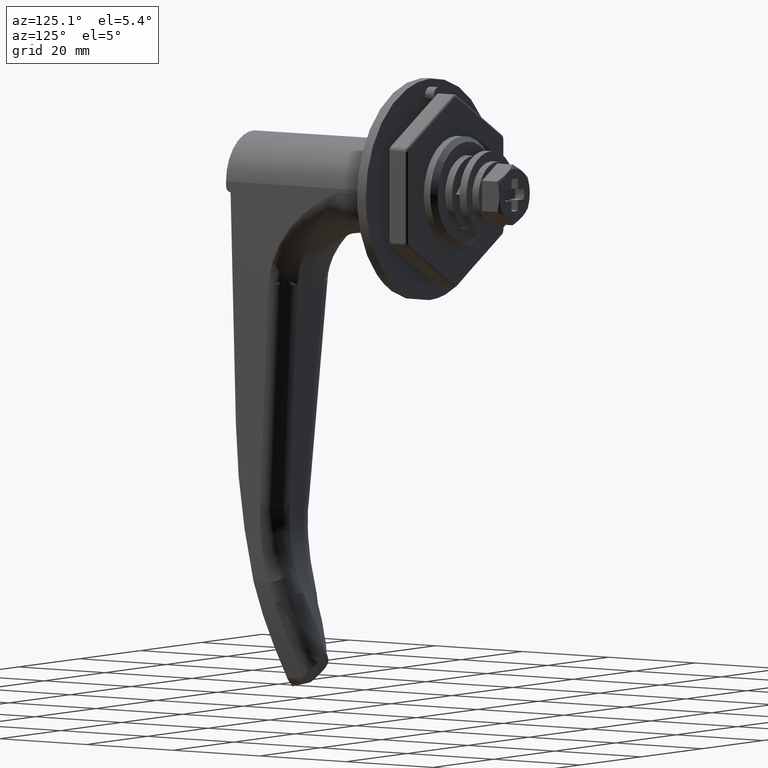
[diagram: clean part render]
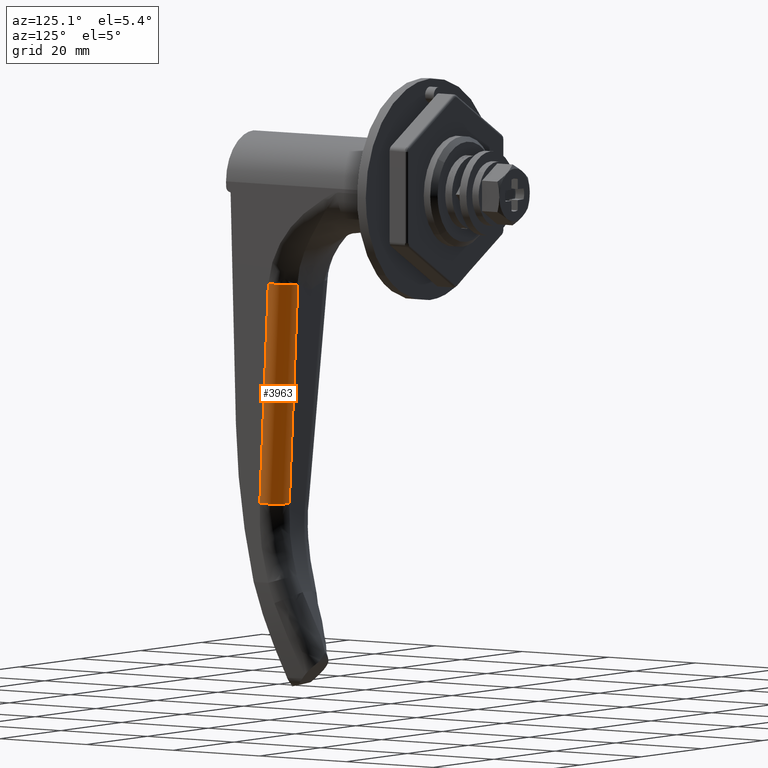
[diagram: same view with one face highlighted and labeled with its STEP entity id]
A machine part, auxiliary view. The second image highlights one B-rep face of the part: STEP entity #3963.
In plain terms, the highlighted face is a freeform B-spline surface patch.
Its self-contained STEP definition (entity closure, byte-faithful):
#3770=CARTESIAN_POINT('',(-22.437733016106151,-8.255049387610672,-18.871068847196049));
#3771=VERTEX_POINT('',#3770);
#3772=CARTESIAN_POINT('',(-18.461527639832500,-4.396805558109194,-19.146202859557850));
#3773=VERTEX_POINT('',#3772);
#3774=CARTESIAN_POINT('',(-22.437733016106151,-8.255049387610672,-18.871068847196049));
#3775=CARTESIAN_POINT('',(-22.152044320049850,-8.253954663433980,-18.901431504204670));
#3776=CARTESIAN_POINT('',(-21.548896417821261,-8.186026172788932,-18.963015679538479));
#3777=CARTESIAN_POINT('',(-20.733657326319449,-7.897518727216668,-19.038708442308131));
#3778=CARTESIAN_POINT('',(-19.972583098552619,-7.425132678161394,-19.101581423633281));
#3779=CARTESIAN_POINT('',(-19.350357596869092,-6.821344219474561,-19.144635531671540));
#3780=CARTESIAN_POINT('',(-18.705151098077199,-5.824198992018430,-19.175042701596912));
#3781=CARTESIAN_POINT('',(-18.482981315680512,-4.970861927358917,-19.165945609050791));
#3782=CARTESIAN_POINT('',(-18.461527639832500,-4.396805558109194,-19.146202859557850));
#3783=B_SPLINE_CURVE_WITH_KNOTS('',3,(#3774,#3775,#3776,#3777,#3778,#3779,#3780,#3781,#3782),.UNSPECIFIED.,.F.,.U.,(4,1,1,1,1,1,4),(0.000000368076154,0.861923656354525,1.819651958786270,2.585817108249508,3.543503762354431,4.405446733978751,6.129320502528001),.UNSPECIFIED.);
#3784=EDGE_CURVE('',#3771,#3773,#3783,.T.);
#3913=CARTESIAN_POINT('',(-22.533229305007399,-8.293212100099801,-17.807758139945459));
#3914=CARTESIAN_POINT('',(-25.832050712035830,-6.551095369820701,-61.941381973682603));
#3915=CARTESIAN_POINT('',(-18.184263096994645,-8.470661062220964,-18.139831474469919));
#3916=CARTESIAN_POINT('',(-21.483084504023072,-6.728544331941862,-62.273455308207062));
#3917=CARTESIAN_POINT('',(-18.374143062313781,-4.113534854123053,-17.953646841447689));
#3918=CARTESIAN_POINT('',(-21.672964469342219,-2.371418123843952,-62.087270675184833));
#3926=(BOUNDED_SURFACE()B_SPLINE_SURFACE(1,2,((#3913,#3915,#3917),(#3914,#3916,#3918)),.UNSPECIFIED.,.F.,.F.,.U.)B_SPLINE_SURFACE_WITH_KNOTS((2,2),(3,3),(0.0,44.291014281400230),(0.0,7.040168494269333),.UNSPECIFIED.)GEOMETRIC_REPRESENTATION_ITEM()RATIONAL_B_SPLINE_SURFACE(((1.0,0.675590207615661,1.0),(1.0,0.675590207615661,1.0)))REPRESENTATION_ITEM('')SURFACE());
#3927=CARTESIAN_POINT('',(-18.461229244179901,-4.251630075732330,-19.176927912045400));
#3928=VERTEX_POINT('',#3927);
#3929=CARTESIAN_POINT('',(-21.588726110713299,-2.599990310246715,-61.018468637680101));
#3930=VERTEX_POINT('',#3929);
#3931=CARTESIAN_POINT('',(-18.461229244179901,-4.251630075732330,-19.176927912045400));
#3932=CARTESIAN_POINT('',(-21.588726110713299,-2.599990310246715,-61.018468637680101));
#3933=QUASI_UNIFORM_CURVE('',1,(#3931,#3932),.UNSPECIFIED.,.F.,.U.);
#3934=EDGE_CURVE('',#3928,#3930,#3933,.T.);
#3935=ORIENTED_EDGE('',*,*,#3934,.F.);
#3936=CARTESIAN_POINT('',(-18.461527639832500,-4.396805558109194,-19.146202859557850));
#3937=CARTESIAN_POINT('',(-18.461229244179901,-4.251630075732330,-19.176927912045400));
#3938=QUASI_UNIFORM_CURVE('',1,(#3936,#3937),.UNSPECIFIED.,.F.,.U.);
#3939=EDGE_CURVE('',#3773,#3928,#3938,.T.);
#3940=ORIENTED_EDGE('',*,*,#3939,.F.);
#3941=ORIENTED_EDGE('',*,*,#3784,.F.);
#3942=CARTESIAN_POINT('',(-25.577598721784600,-6.596877603882801,-60.878087368302197));
#3943=VERTEX_POINT('',#3942);
#3944=CARTESIAN_POINT('',(-25.577598721784600,-6.596877603882801,-60.878087368302197));
#3945=CARTESIAN_POINT('',(-22.437733016106151,-8.255049387610672,-18.871068847196049));
#3946=QUASI_UNIFORM_CURVE('',1,(#3944,#3945),.UNSPECIFIED.,.F.,.U.);
#3947=EDGE_CURVE('',#3943,#3771,#3946,.T.);
#3948=ORIENTED_EDGE('',*,*,#3947,.F.);
#3949=CARTESIAN_POINT('',(-25.577598721784600,-6.596877603882801,-60.878087368302197));
#3950=CARTESIAN_POINT('',(-25.251871618778551,-6.595982949807877,-60.902398921608018));
#3951=CARTESIAN_POINT('',(-24.567830654966048,-6.509549950482032,-60.950116566741002));
#3952=CARTESIAN_POINT('',(-23.743588864375941,-6.177516490052011,-60.998618938198561));
#3953=CARTESIAN_POINT('',(-23.037030832383529,-5.703421611778265,-61.032717206396889));
#3954=CARTESIAN_POINT('',(-22.426280457795631,-5.106327812175924,-61.054798994103493));
#3955=CARTESIAN_POINT('',(-21.786157078490660,-4.068238370173972,-61.061668580056413));
#3956=CARTESIAN_POINT('',(-21.589625716803852,-3.154974455678369,-61.040308664427123));
#3957=CARTESIAN_POINT('',(-21.588726110713299,-2.599990310246715,-61.018468637680101));
#3958=B_SPLINE_CURVE_WITH_KNOTS('',3,(#3949,#3950,#3951,#3952,#3953,#3954,#3955,#3956,#3957),.UNSPECIFIED.,.F.,.U.,(4,1,1,1,1,1,4),(0.000000341842945,0.979935157145269,2.057871144915541,2.645856633518908,3.527709217342260,4.605690348038548,6.271582032660225),.UNSPECIFIED.);
#3959=EDGE_CURVE('',#3943,#3930,#3958,.T.);
#3960=ORIENTED_EDGE('',*,*,#3959,.T.);
#3961=EDGE_LOOP('',(#3935,#3940,#3941,#3948,#3960));
#3962=FACE_OUTER_BOUND('',#3961,.T.);
#3963=ADVANCED_FACE('',(#3962),#3926,.T.);